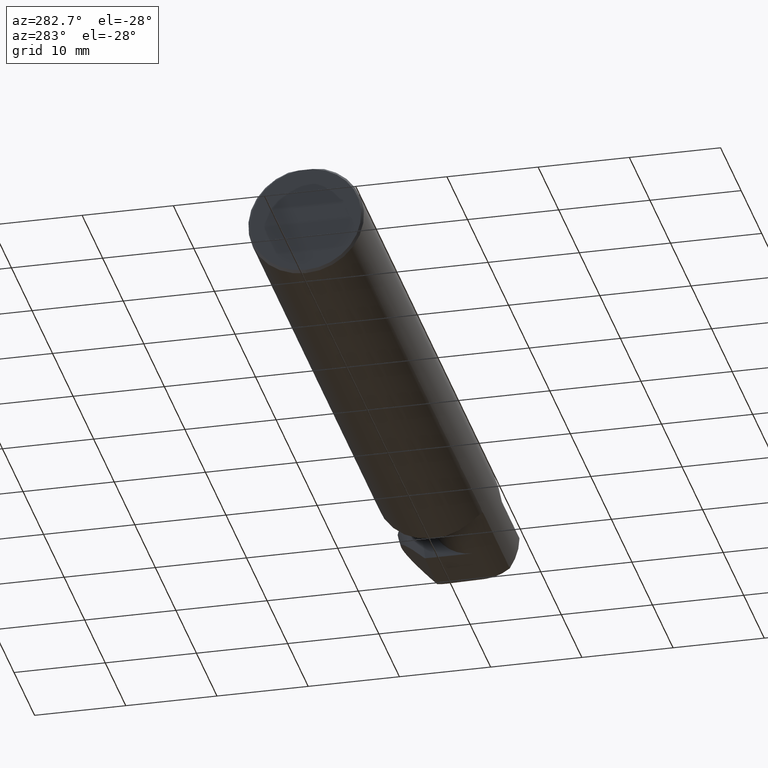
[diagram: clean part render]
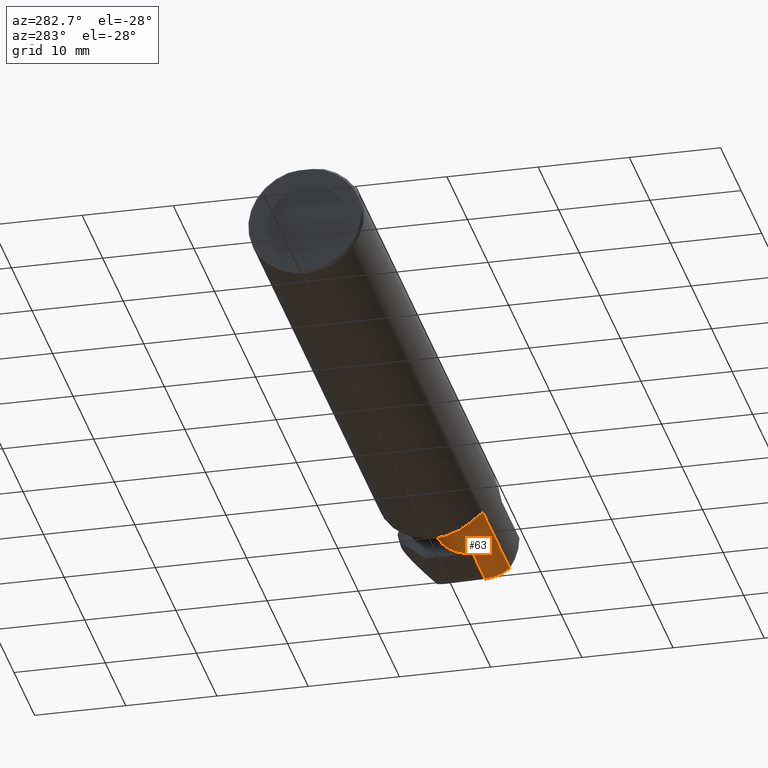
[diagram: same view with one face highlighted and labeled with its STEP entity id]
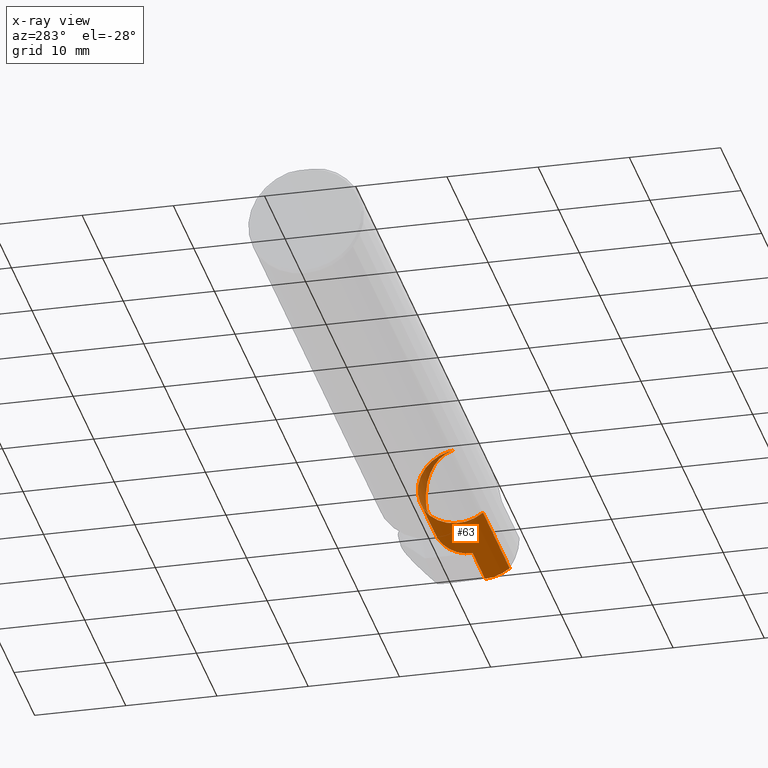
[diagram: x-ray of the same camera — body ghosted, the highlighted face saturated]
A machine part, auxiliary view. The second image highlights one B-rep face of the part: STEP entity #63.
The next image is the same camera in x-ray: the body ghosted, the highlighted face saturated — about 15% of this face is hidden behind the body in this view.
In plain terms, the highlighted cylindrical surface (partial cylindrical patch) has radius 4.445 mm, axis along (-1, -0, -0).
Its self-contained STEP definition (entity closure, byte-faithful):
#12 = DIRECTION ( 'NONE',  ( -1.000000000000000000, -4.000085335087457591E-16, -0.000000000000000000 ) ) ;
#13 = AXIS2_PLACEMENT_3D ( 'NONE', #143, #12, #650 ) ;
#34 = CARTESIAN_POINT ( 'NONE',  ( 2.739255635872652750, 0.07407892981889423190, -0.004071607948631744862 ) ) ;
#37 = EDGE_CURVE ( 'NONE', #587, #484, #520, .T. ) ;
#63 = ADVANCED_FACE ( 'NONE', ( #625 ), #581, .T. ) ;
#69 = ORIENTED_EDGE ( 'NONE', *, *, #298, .F. ) ;
#100 = CARTESIAN_POINT ( 'NONE',  ( 2.986812263240209653, -0.1771157075472504783, -0.1623092683844332973 ) ) ;
#102 = VERTEX_POINT ( 'NONE', #325 ) ;
#115 = CARTESIAN_POINT ( 'NONE',  ( 2.450000000000000178, -0.1008500000000001201, 0.000000000000000000 ) ) ;
#133 = VECTOR ( 'NONE', #667, 39.37007874015748143 ) ;
#138 = CARTESIAN_POINT ( 'NONE',  ( 2.753585400763539415, -0.1008500000000000091, -0.1750000000000000444 ) ) ;
#143 = CARTESIAN_POINT ( 'NONE',  ( 2.475000000000000089, -0.1008500000000001062, 0.000000000000000000 ) ) ;
#163 = EDGE_CURVE ( 'NONE', #822, #673, #560, .T. ) ;
#172 = ORIENTED_EDGE ( 'NONE', *, *, #163, .F. ) ;
#218 = EDGE_CURVE ( 'NONE', #277, #587, #468, .T. ) ;
#219 = CARTESIAN_POINT ( 'NONE',  ( 2.986150208451177512, -0.2080850024789288599, -0.1382955322609668025 ) ) ;
#249 = ORIENTED_EDGE ( 'NONE', *, *, #357, .F. ) ;
#260 = VERTEX_POINT ( 'NONE', #219 ) ;
#264 = CARTESIAN_POINT ( 'NONE',  ( 2.753553955298210898, -0.001152430219569880367, -0.1750000000000000722 ) ) ;
#270 = AXIS2_PLACEMENT_3D ( 'NONE', #115, #383, #566 ) ;
#277 = VERTEX_POINT ( 'NONE', #613 ) ;
#283 = VECTOR ( 'NONE', #358, 39.37007874015748143 ) ;
#290 = CARTESIAN_POINT ( 'NONE',  ( 2.989253867864499092, -0.1008499999999990376, -0.1750000000000000722 ) ) ;
#291 = CARTESIAN_POINT ( 'NONE',  ( 2.547487373415291412, 0.07414999999999992430, 0.1025126265847084162 ) ) ;
#292 =( BOUNDED_CURVE ( )  B_SPLINE_CURVE ( 3, ( #745, #804, #291, #294 ),
 .UNSPECIFIED., .F., .T. ) 
 B_SPLINE_CURVE_WITH_KNOTS ( ( 4, 4 ),
 ( 1.948906882769498299E-17, 1.570796326794897002 ),
 .UNSPECIFIED. ) 
 CURVE ( )  GEOMETRIC_REPRESENTATION_ITEM ( )  RATIONAL_B_SPLINE_CURVE ( ( 1.000000000000000000, 0.8047378541243649375, 0.8047378541243649375, 1.000000000000000000 ) ) 
 REPRESENTATION_ITEM ( '' )  );
#294 = CARTESIAN_POINT ( 'NONE',  ( 2.650000000000000355, 0.07414999999999984104, 4.286263797015729199E-17 ) ) ;
#298 = EDGE_CURVE ( 'NONE', #260, #362, #380, .T. ) ;
#313 = EDGE_CURVE ( 'NONE', #699, #102, #609, .T. ) ;
#325 = CARTESIAN_POINT ( 'NONE',  ( 2.739326706053758276, 0.07414999999999984104, 0.000000000000000000 ) ) ;
#326 = EDGE_CURVE ( 'NONE', #484, #102, #433, .T. ) ;
#328 = CARTESIAN_POINT ( 'NONE',  ( 2.650000000000000355, 0.07414999999999984104, 4.286263797015729199E-17 ) ) ;
#349 = ORIENTED_EDGE ( 'NONE', *, *, #313, .T. ) ;
#357 = EDGE_CURVE ( 'NONE', #362, #277, #553, .T. ) ;
#358 = DIRECTION ( 'NONE',  ( 1.000000000000000000, 4.000085335087457591E-16, 0.000000000000000000 ) ) ;
#360 = CARTESIAN_POINT ( 'NONE',  ( 2.986150208451177512, -0.2080850024789288599, -0.1382955322609668025 ) ) ;
#362 = VERTEX_POINT ( 'NONE', #482 ) ;
#373 = ORIENTED_EDGE ( 'NONE', *, *, #326, .F. ) ;
#380 =( BOUNDED_CURVE ( )  B_SPLINE_CURVE ( 3, ( #360, #100, #611, #290 ),
 .UNSPECIFIED., .F., .T. ) 
 B_SPLINE_CURVE_WITH_KNOTS ( ( 4, 4 ),
 ( 0.4474640105399736445, 1.107026853503884078 ),
 .UNSPECIFIED. ) 
 CURVE ( )  GEOMETRIC_REPRESENTATION_ITEM ( )  RATIONAL_B_SPLINE_CURVE ( ( 1.000000000000000000, 0.9640754331822825041, 0.9640754331822825041, 1.000000000000000000 ) ) 
 REPRESENTATION_ITEM ( '' )  );
#383 = DIRECTION ( 'NONE',  ( -1.000000000000000000, -4.000085335087457591E-16, -0.000000000000000000 ) ) ;
#406 = ORIENTED_EDGE ( 'NONE', *, *, #37, .F. ) ;
#413 = CARTESIAN_POINT ( 'NONE',  ( 2.739326706053758276, 0.07414999999999984104, 0.000000000000000000 ) ) ;
#421 = CARTESIAN_POINT ( 'NONE',  ( 2.739220100782099543, 0.07404339472834142732, -0.006107411922947610788 ) ) ;
#433 = B_SPLINE_CURVE_WITH_KNOTS ( 'NONE', 3,
 ( #421, #34, #741, #413 ),
 .UNSPECIFIED., .F., .F.,
 ( 4, 4 ),
 ( 0.000000000000000000, 1.000000000000000000 ),
 .UNSPECIFIED. ) ;
#437 = EDGE_CURVE ( 'NONE', #822, #699, #292, .T. ) ;
#445 = DIRECTION ( 'NONE',  ( -1.000000000000000000, -4.000085335087457591E-16, -0.000000000000000000 ) ) ;
#464 = CARTESIAN_POINT ( 'NONE',  ( 2.750478392166241903, 0.07404339472834139957, -0.006107411922948607387 ) ) ;
#467 = CARTESIAN_POINT ( 'NONE',  ( 2.475000000000000089, -0.2080850024789288599, -0.1382955322609669968 ) ) ;
#468 =( BOUNDED_CURVE ( )  B_SPLINE_CURVE ( 3, ( #138, #264, #477, #464 ),
 .UNSPECIFIED., .F., .T. ) 
 B_SPLINE_CURVE_WITH_KNOTS ( ( 4, 4 ),
 ( 3.159045946109714009, 4.694935687864662199 ),
 .UNSPECIFIED. ) 
 CURVE ( )  GEOMETRIC_REPRESENTATION_ITEM ( )  RATIONAL_B_SPLINE_CURVE ( ( 1.000000000000000000, 0.8128932002257817091, 0.8128932002257817091, 1.000000000000000000 ) ) 
 REPRESENTATION_ITEM ( '' )  );
#477 = CARTESIAN_POINT ( 'NONE',  ( 2.752279901668356121, 0.07056399972053573055, -0.1057442486376065083 ) ) ;
#482 = CARTESIAN_POINT ( 'NONE',  ( 2.989253867864499092, -0.1008499999999990376, -0.1750000000000000722 ) ) ;
#484 = VERTEX_POINT ( 'NONE', #797 ) ;
#505 = CARTESIAN_POINT ( 'NONE',  ( 2.450000000000000178, 0.07404339472834162161, -0.006107411922938292721 ) ) ;
#520 = LINE ( 'NONE', #505, #685 ) ;
#521 = CARTESIAN_POINT ( 'NONE',  ( 2.475000000000000089, -0.1008500000000001617, 0.1749999999999984346 ) ) ;
#553 = LINE ( 'NONE', #731, #133 ) ;
#560 = CIRCLE ( 'NONE', #13, 0.1750000000000000444 ) ;
#566 = DIRECTION ( 'NONE',  ( 0.000000000000000000, -1.000000000000000000, 0.000000000000000000 ) ) ;
#573 = DIRECTION ( 'NONE',  ( -1.000000000000000000, -4.000085335087457591E-16, -0.000000000000000000 ) ) ;
#581 = CYLINDRICAL_SURFACE ( 'NONE', #270, 0.1750000000000000444 ) ;
#587 = VERTEX_POINT ( 'NONE', #691 ) ;
#609 = LINE ( 'NONE', #728, #283 ) ;
#611 = CARTESIAN_POINT ( 'NONE',  ( 2.987885367171878137, -0.1400387324517224086, -0.1750000000000001832 ) ) ;
#613 = CARTESIAN_POINT ( 'NONE',  ( 2.753585400763539415, -0.1008500000000000091, -0.1750000000000000444 ) ) ;
#618 = ORIENTED_EDGE ( 'NONE', *, *, #437, .T. ) ;
#625 = FACE_OUTER_BOUND ( 'NONE', #716, .T. ) ;
#632 = LINE ( 'NONE', #758, #664 ) ;
#650 = DIRECTION ( 'NONE',  ( 0.000000000000000000, -1.000000000000000000, 0.000000000000000000 ) ) ;
#660 = ORIENTED_EDGE ( 'NONE', *, *, #218, .F. ) ;
#664 = VECTOR ( 'NONE', #573, 39.37007874015748143 ) ;
#667 = DIRECTION ( 'NONE',  ( -1.000000000000000000, -0.000000000000000000, -0.000000000000000000 ) ) ;
#673 = VERTEX_POINT ( 'NONE', #467 ) ;
#685 = VECTOR ( 'NONE', #445, 39.37007874015748143 ) ;
#691 = CARTESIAN_POINT ( 'NONE',  ( 2.750478392166241903, 0.07404339472834139957, -0.006107411922948607387 ) ) ;
#699 = VERTEX_POINT ( 'NONE', #328 ) ;
#716 = EDGE_LOOP ( 'NONE', ( #753, #172, #618, #349, #373, #406, #660, #249, #69 ) ) ;
#728 = CARTESIAN_POINT ( 'NONE',  ( 2.450000000000000178, 0.07414999999999985492, 6.735557395310436353E-17 ) ) ;
#731 = CARTESIAN_POINT ( 'NONE',  ( 3.402190948718819996, -0.1008499999999990376, -0.1750000000000000722 ) ) ;
#741 = CARTESIAN_POINT ( 'NONE',  ( 2.739291170963205069, 0.07411446490944703647, -0.002035803974315872431 ) ) ;
#745 = CARTESIAN_POINT ( 'NONE',  ( 2.475000000000000089, -0.1008500000000001617, 0.1749999999999984346 ) ) ;
#753 = ORIENTED_EDGE ( 'NONE', *, *, #795, .T. ) ;
#758 = CARTESIAN_POINT ( 'NONE',  ( 2.611894750000000265, -0.2080850024789289987, -0.1382955322609668025 ) ) ;
#795 = EDGE_CURVE ( 'NONE', #260, #673, #632, .T. ) ;
#797 = CARTESIAN_POINT ( 'NONE',  ( 2.739220100782099543, 0.07404339472834142732, -0.006107411922947610788 ) ) ;
#804 = CARTESIAN_POINT ( 'NONE',  ( 2.474999999999998757, 0.001662626584708252033, 0.1750000000000000444 ) ) ;
#822 = VERTEX_POINT ( 'NONE', #521 ) ;